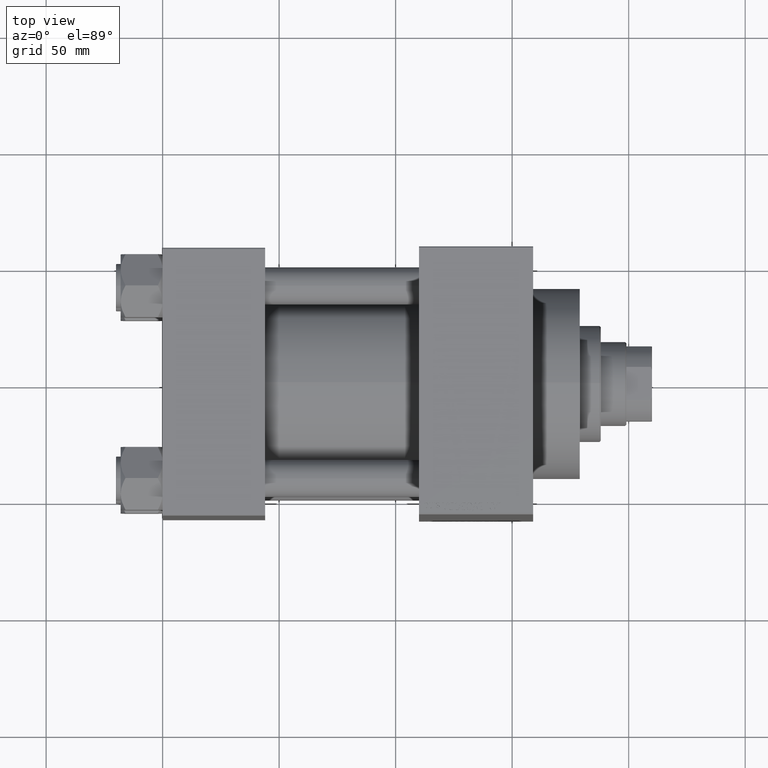
[diagram: clean part render]
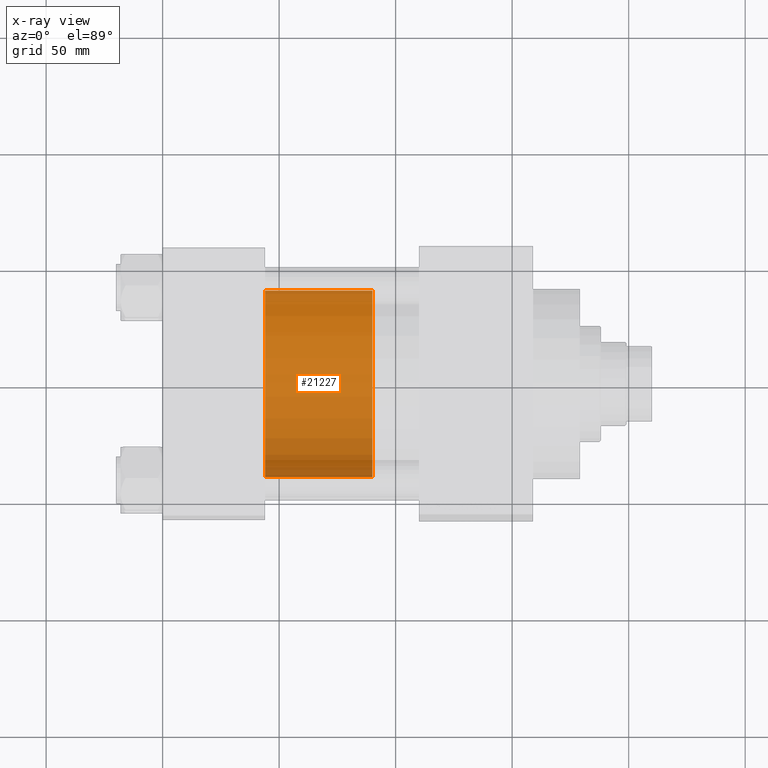
[diagram: x-ray — body ghosted, one internal face saturated and labeled with its STEP entity id]
A machine part, top view, then the same camera in x-ray: the body is ghosted and one INTERNAL B-rep face — a face not visible from any outside direction — is saturated and labeled: STEP entity #21227.
In plain terms, the highlighted cylindrical surface (partial cylindrical patch) has radius 40 mm, axis along (-1, 0, 0).
Its self-contained STEP definition (entity closure, byte-faithful):
#9 = VERTEX_POINT ( 'NONE', #43210 ) ;
#464 = AXIS2_PLACEMENT_3D ( 'NONE', #5399, #12862, #16955 ) ;
#1447 = VERTEX_POINT ( 'NONE', #13104 ) ;
#4066 = CARTESIAN_POINT ( 'NONE',  ( -40.00000000000000000, 0.000000000000000000, 46.00000000000000000 ) ) ;
#4956 = EDGE_CURVE ( 'NONE', #1447, #9, #41742, .T. ) ;
#5399 = CARTESIAN_POINT ( 'NONE',  ( 0.000000000000000000, 0.000000000000000000, 0.000000000000000000 ) ) ;
#6378 = CARTESIAN_POINT ( 'NONE',  ( 0.000000000000000000, 0.000000000000000000, 46.00000000000000000 ) ) ;
#7214 = ORIENTED_EDGE ( 'NONE', *, *, #4956, .T. ) ;
#8726 = EDGE_LOOP ( 'NONE', ( #14226, #15917, #7214, #23502 ) ) ;
#9172 = CARTESIAN_POINT ( 'NONE',  ( 40.00000000000000000, 4.898587196589413026E-15, 46.00000000000000000 ) ) ;
#9266 = CIRCLE ( 'NONE', #36198, 40.00000000000000000 ) ;
#9441 = VECTOR ( 'NONE', #11003, 1000.000000000000000 ) ;
#10694 = DIRECTION ( 'NONE',  ( -1.000000000000000000, 0.000000000000000000, 0.000000000000000000 ) ) ;
#11003 = DIRECTION ( 'NONE',  ( -0.000000000000000000, -0.000000000000000000, -1.000000000000000000 ) ) ;
#12862 = DIRECTION ( 'NONE',  ( 0.000000000000000000, 0.000000000000000000, 1.000000000000000000 ) ) ;
#12992 = EDGE_CURVE ( 'NONE', #40215, #18091, #9266, .T. ) ;
#13104 = CARTESIAN_POINT ( 'NONE',  ( 40.00000000000000000, 4.898587196589413026E-15, 0.000000000000000000 ) ) ;
#13357 = EDGE_CURVE ( 'NONE', #40215, #1447, #18464, .T. ) ;
#14226 = ORIENTED_EDGE ( 'NONE', *, *, #12992, .F. ) ;
#15917 = ORIENTED_EDGE ( 'NONE', *, *, #13357, .T. ) ;
#16020 = EDGE_CURVE ( 'NONE', #18091, #9, #31690, .T. ) ;
#16434 = DIRECTION ( 'NONE',  ( 0.000000000000000000, 0.000000000000000000, 1.000000000000000000 ) ) ;
#16955 = DIRECTION ( 'NONE',  ( 1.000000000000000000, 0.000000000000000000, 0.000000000000000000 ) ) ;
#18091 = VERTEX_POINT ( 'NONE', #4066 ) ;
#18464 = LINE ( 'NONE', #36302, #9441 ) ;
#21073 = DIRECTION ( 'NONE',  ( -0.000000000000000000, -0.000000000000000000, -1.000000000000000000 ) ) ;
#21227 = ADVANCED_FACE ( 'NONE', ( #31911 ), #28301, .T. ) ;
#23502 = ORIENTED_EDGE ( 'NONE', *, *, #16020, .F. ) ;
#25287 = DIRECTION ( 'NONE',  ( 1.000000000000000000, 0.000000000000000000, 0.000000000000000000 ) ) ;
#27842 = CARTESIAN_POINT ( 'NONE',  ( -40.00000000000000000, 0.000000000000000000, 46.00000000000000000 ) ) ;
#28301 = CYLINDRICAL_SURFACE ( 'NONE', #45269, 40.00000000000000000 ) ;
#29242 = VECTOR ( 'NONE', #35533, 1000.000000000000000 ) ;
#31690 = LINE ( 'NONE', #27842, #29242 ) ;
#31911 = FACE_OUTER_BOUND ( 'NONE', #8726, .T. ) ;
#34979 = CARTESIAN_POINT ( 'NONE',  ( 0.000000000000000000, 0.000000000000000000, 46.00000000000000000 ) ) ;
#35533 = DIRECTION ( 'NONE',  ( -0.000000000000000000, -0.000000000000000000, -1.000000000000000000 ) ) ;
#36198 = AXIS2_PLACEMENT_3D ( 'NONE', #34979, #16434, #25287 ) ;
#36302 = CARTESIAN_POINT ( 'NONE',  ( 40.00000000000000000, 4.898587196589413026E-15, 46.00000000000000000 ) ) ;
#40215 = VERTEX_POINT ( 'NONE', #9172 ) ;
#41742 = CIRCLE ( 'NONE', #464, 40.00000000000000000 ) ;
#43210 = CARTESIAN_POINT ( 'NONE',  ( -40.00000000000000000, 0.000000000000000000, 0.000000000000000000 ) ) ;
#45269 = AXIS2_PLACEMENT_3D ( 'NONE', #6378, #21073, #10694 ) ;